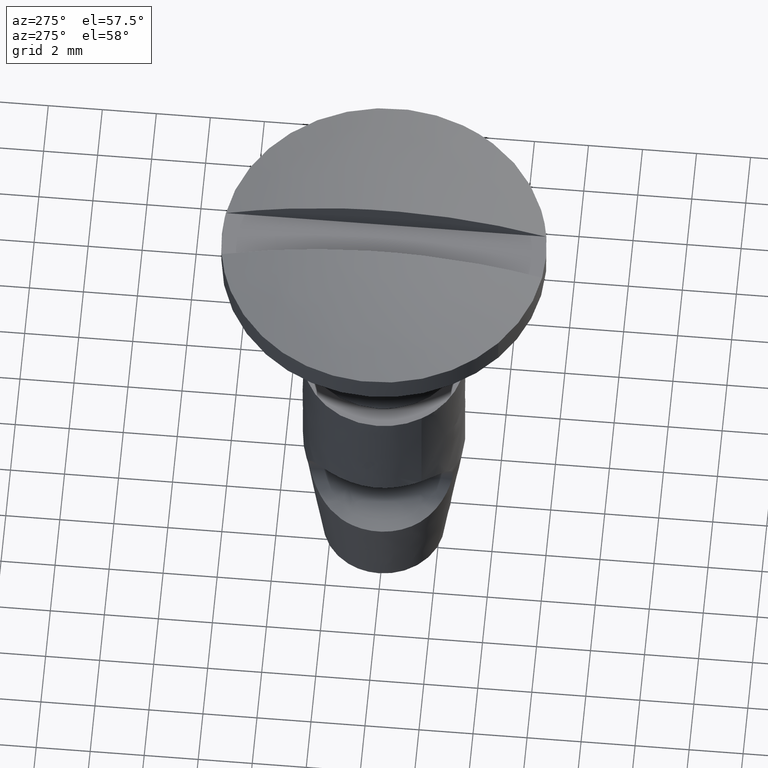
[diagram: clean part render]
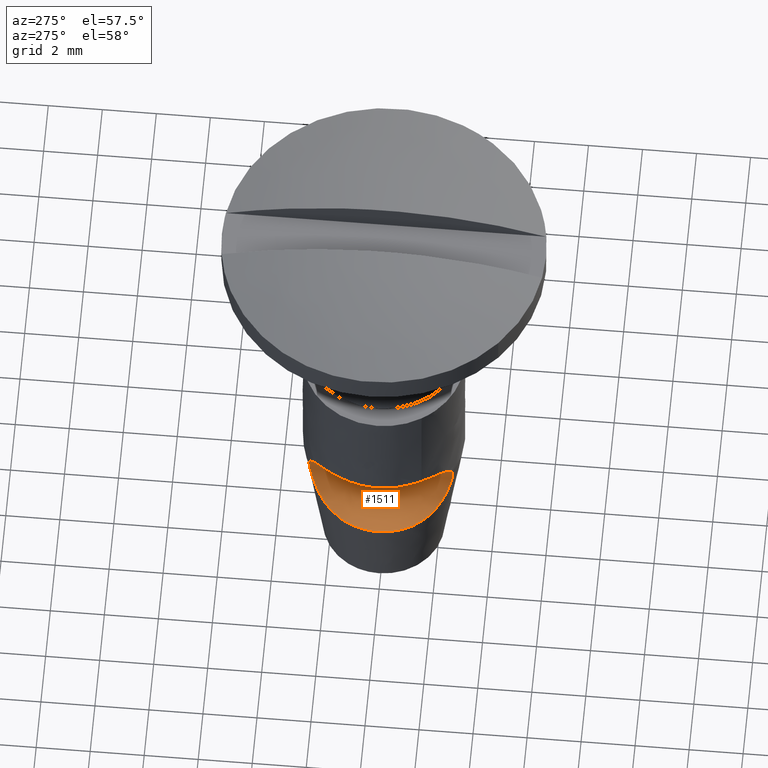
[diagram: same view with one face highlighted and labeled with its STEP entity id]
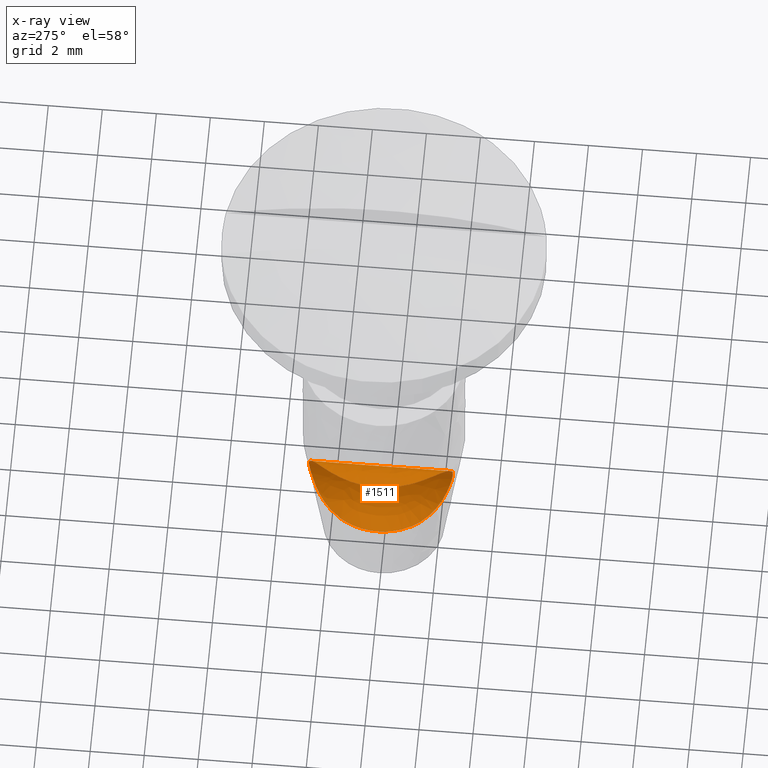
[diagram: x-ray of the same camera — body ghosted, the highlighted face saturated]
A machine part, auxiliary view. The second image highlights one B-rep face of the part: STEP entity #1511.
The next image is the same camera in x-ray: the body ghosted, the highlighted face saturated — about 0% of this face is hidden behind the body in this view.
In plain terms, the highlighted face is a freeform B-spline surface patch.
Its self-contained STEP definition (entity closure, byte-faithful):
#96=CARTESIAN_POINT('',(-2.288268809991713,1.386117586484732,4.684014360866409));
#97=VERTEX_POINT('',#96);
#103=CARTESIAN_POINT('',(-1.355999679755594,2.655354154192300,7.000002687652030));
#104=VERTEX_POINT('',#103);
#105=CARTESIAN_POINT('',(-2.288268809991713,1.386117586484732,4.684014360866409));
#106=CARTESIAN_POINT('',(-2.288162582111236,1.386306695108205,4.684057905011850));
#107=CARTESIAN_POINT('',(-2.288056546705157,1.386495562007664,4.684101987297357));
#108=CARTESIAN_POINT('',(-2.241347530087340,1.469670756053154,4.703525835182372));
#109=CARTESIAN_POINT('',(-2.191445482570844,1.549314597751878,4.726620601317674));
#110=CARTESIAN_POINT('',(-2.086283584067483,1.701979990965732,4.782489065815843));
#111=CARTESIAN_POINT('',(-2.030914049488135,1.775123870140613,4.815323507103828));
#112=CARTESIAN_POINT('',(-1.916691034817464,1.914280233492043,4.893232698784299));
#113=CARTESIAN_POINT('',(-1.859052731717014,1.978848086275691,4.937495946554818));
#114=CARTESIAN_POINT('',(-1.745020129472527,2.098874320203875,5.038116921451184));
#115=CARTESIAN_POINT('',(-1.688616685566162,2.154332627706060,5.094464590212546));
#116=CARTESIAN_POINT('',(-1.606836694163573,2.231342889845454,5.189385794773015));
#117=CARTESIAN_POINT('',(-1.580201746726736,2.255838563356564,5.222611665298042));
#118=CARTESIAN_POINT('',(-1.529168939857675,2.302068479214250,5.291366504927984));
#119=CARTESIAN_POINT('',(-1.504660417150386,2.323907111523188,5.327020780701097));
#120=CARTESIAN_POINT('',(-1.434516799387561,2.385977177249652,5.437822924214965));
#121=CARTESIAN_POINT('',(-1.392248037679149,2.422783482787547,5.516789830392372));
#122=CARTESIAN_POINT('',(-1.337175116653028,2.472305782746600,5.643207289814535));
#123=CARTESIAN_POINT('',(-1.320168938704140,2.487903391565820,5.686845747497460));
#124=CARTESIAN_POINT('',(-1.289831859040811,2.516764937093687,5.775072866681924));
#125=CARTESIAN_POINT('',(-1.276409120988964,2.530108603646936,5.819838703487500));
#126=CARTESIAN_POINT('',(-1.241479467183053,2.567221382925599,5.956028323955152));
#127=CARTESIAN_POINT('',(-1.225276403923654,2.588114869093461,6.049325953218218));
#128=CARTESIAN_POINT('',(-1.212507262931318,2.614277836690888,6.193075976093735));
#129=CARTESIAN_POINT('',(-1.210201729290537,2.622134197769412,6.241764019003539));
#130=CARTESIAN_POINT('',(-1.209654390932351,2.635807863838718,6.338415829364182));
#131=CARTESIAN_POINT('',(-1.211379885108329,2.641673565959556,6.386614850990437));
#132=CARTESIAN_POINT('',(-1.222512454208685,2.656398904126800,6.530832004065113));
#133=CARTESIAN_POINT('',(-1.237829779147558,2.662443873630589,6.626470073987576));
#134=CARTESIAN_POINT('',(-1.273253087378812,2.665044282153285,6.769174094377075));
#135=CARTESIAN_POINT('',(-1.287140121838331,2.664805528553726,6.816505272190883));
#136=CARTESIAN_POINT('',(-1.318678961409638,2.661933116634693,6.909341290802464));
#137=CARTESIAN_POINT('',(-1.336374708690304,2.659305036732062,6.955036435476620));
#138=CARTESIAN_POINT('',(-1.355999679755604,2.655354154192294,7.000002687652027));
#139=B_SPLINE_CURVE_WITH_KNOTS('',3,(#105,#106,#107,#108,#109,#110,#111,#112,#113,#114,#115,#116,#117,#118,#119,#120,#121,#122,#123,#124,#125,#126,#127,#128,#129,#130,#131,#132,#133,#134,#135,#136,#137,#138),.UNSPECIFIED.,.F.,.U.,(4,2,2,2,2,2,2,2,2,2,2,2,2,2,2,2,4),(0.656178886374508,0.656250000000000,0.687500000000000,0.718750000000000,0.750000000000000,0.781250000000000,0.796875000000000,0.812500000000000,0.843750000000001,0.859375000000001,0.875000000000001,0.906250000000001,0.921875000000001,0.937500000000001,0.968750000000001,0.984375000000000,1.0),.UNSPECIFIED.);
#140=EDGE_CURVE('',#97,#104,#139,.T.);
#306=CARTESIAN_POINT('',(-1.355999679755594,-2.655354154192300,7.000002687652030));
#307=VERTEX_POINT('',#306);
#321=CARTESIAN_POINT('',(-1.355999679755604,-2.655354154192295,7.000002687652027));
#322=CARTESIAN_POINT('',(-1.316785352904816,-2.663248749233887,6.910151787786023));
#323=CARTESIAN_POINT('',(-1.285578267299150,-2.665857300413901,6.818199967788275));
#324=CARTESIAN_POINT('',(-1.250353756004730,-2.663407252391283,6.677223749841193));
#325=CARTESIAN_POINT('',(-1.240553763082784,-2.661514537764596,6.629720900553097));
#326=CARTESIAN_POINT('',(-1.224889485491663,-2.655668178650680,6.533678987520131));
#327=CARTESIAN_POINT('',(-1.219014594667741,-2.651684868003517,6.484889521103010));
#328=CARTESIAN_POINT('',(-1.207640949443729,-2.636898099857500,6.339404794045286));
#329=CARTESIAN_POINT('',(-1.208209682085359,-2.623339808588781,6.243319848567039));
#330=CARTESIAN_POINT('',(-1.220649806465317,-2.597472015821560,6.100521513315049));
#331=CARTESIAN_POINT('',(-1.226738210329586,-2.587915110425112,6.053145986717893));
#332=CARTESIAN_POINT('',(-1.242805181045358,-2.566784668322692,5.958866483959518));
#333=CARTESIAN_POINT('',(-1.252775814444623,-2.555236495928067,5.912128756691535));
#334=CARTESIAN_POINT('',(-1.287766570428911,-2.518007051228443,5.775273272182479));
#335=CARTESIAN_POINT('',(-1.317978294285689,-2.489592728843532,5.687648857358541));
#336=CARTESIAN_POINT('',(-1.390832616819125,-2.424032094932622,5.519674198409420));
#337=CARTESIAN_POINT('',(-1.433884028597789,-2.386533333031413,5.438898840591370));
#338=CARTESIAN_POINT('',(-1.527808429329171,-2.303427190819819,5.290379435172278));
#339=CARTESIAN_POINT('',(-1.578903691295265,-2.257615351047627,5.221931190538245));
#340=CARTESIAN_POINT('',(-1.660041537544163,-2.181256376485526,5.127571422973081));
#341=CARTESIAN_POINT('',(-1.687933571907502,-2.154431800697685,5.097412288208283));
#342=CARTESIAN_POINT('',(-1.744492121098341,-2.098430019479563,5.040278012158800));
#343=CARTESIAN_POINT('',(-1.773009013925867,-2.069404451960733,5.013436630674725));
#344=CARTESIAN_POINT('',(-1.858804471253623,-1.979128912775142,4.937681864970591));
#345=CARTESIAN_POINT('',(-1.916321211751513,-1.914680404575895,4.893529229357702));
#346=CARTESIAN_POINT('',(-2.001396026344355,-1.811109964407596,4.835435453291849));
#347=CARTESIAN_POINT('',(-2.029632218071966,-1.775335186554191,4.817384361702245));
#348=CARTESIAN_POINT('',(-2.085083673650622,-1.701882821861706,4.784004065912137));
#349=CARTESIAN_POINT('',(-2.112194288580250,-1.664353095312470,4.768729384579254));
#350=CARTESIAN_POINT('',(-2.191431639550111,-1.549358253721339,4.726616682976731));
#351=CARTESIAN_POINT('',(-2.241460463276748,-1.469490250863035,4.703473587701105));
#352=CARTESIAN_POINT('',(-2.311430019438803,-1.344863844986499,4.674384832568147));
#353=CARTESIAN_POINT('',(-2.333908766089634,-1.302517036049931,4.665630707490730));
#354=CARTESIAN_POINT('',(-2.377037500728630,-1.216201512733256,4.649757800753780));
#355=CARTESIAN_POINT('',(-2.397632652313646,-1.172327368937252,4.642660925513752));
#356=CARTESIAN_POINT('',(-2.494743025934280,-0.951293504366971,4.610974529803083));
#357=CARTESIAN_POINT('',(-2.554632342744304,-0.767498119790231,4.597066248494295));
#358=CARTESIAN_POINT('',(-2.605412680483489,-0.529154266269079,4.586247810343089));
#359=CARTESIAN_POINT('',(-2.614365062634275,-0.480965654776700,4.584434172034693));
#360=CARTESIAN_POINT('',(-2.629629046951967,-0.384745069310251,4.581430362017480));
#361=CARTESIAN_POINT('',(-2.635969421776119,-0.336600089126556,4.580233879088555));
#362=CARTESIAN_POINT('',(-2.651162974404412,-0.192063022540981,4.577418341674207));
#363=CARTESIAN_POINT('',(-2.661230807543153,0.000924785799617,4.575690640037053));
#364=CARTESIAN_POINT('',(-2.651014839443568,0.194450647933645,4.577443906040331));
#365=CARTESIAN_POINT('',(-2.635579011483458,0.339802344687373,4.580307213127941));
#366=CARTESIAN_POINT('',(-2.629110700827858,0.388413825354996,4.581529741833246));
#367=CARTESIAN_POINT('',(-2.613711416958329,0.484652977333354,4.584565637040544));
#368=CARTESIAN_POINT('',(-2.604777834832049,0.532370473483567,4.586379381875055));
#369=CARTESIAN_POINT('',(-2.554107956063378,0.768976518700897,4.597193252894869));
#370=CARTESIAN_POINT('',(-2.494472275497607,0.951984811414740,4.611053410072686));
#371=CARTESIAN_POINT('',(-2.378158889139941,1.216614217917490,4.649019808039801));
#372=CARTESIAN_POINT('',(-2.334751494434530,1.303302626210486,4.664694822132782));
#373=CARTESIAN_POINT('',(-2.288268809991713,1.386117586484732,4.684014360866409));
#374=B_SPLINE_CURVE_WITH_KNOTS('',3,(#321,#322,#323,#324,#325,#326,#327,#328,#329,#330,#331,#332,#333,#334,#335,#336,#337,#338,#339,#340,#341,#342,#343,#344,#345,#346,#347,#348,#349,#350,#351,#352,#353,#354,#355,#356,#357,#358,#359,#360,#361,#362,#363,#364,#365,#366,#367,#368,#369,#370,#371,#372,#373),.UNSPECIFIED.,.F.,.U.,(4,2,2,2,2,2,2,2,2,2,2,2,2,2,2,2,2,2,2,2,2,1,2,2,2,2,4),(0.0,0.031250000000000,0.046875000000000,0.062500000000001,0.093750000000001,0.109375000000001,0.125000000000001,0.156250000000001,0.187500000000000,0.218750000000000,0.234375000000000,0.250000000000000,0.281250000000000,0.296875000000000,0.312500000000000,0.343750000000000,0.359375000000000,0.375000000000000,0.437500000000000,0.453125000000000,0.468750000000000,0.500000000000000,0.531250000000000,0.546875000000000,0.562500000000000,0.625000000000000,0.656178886374507),.UNSPECIFIED.);
#375=EDGE_CURVE('',#307,#97,#374,.T.);
#532=CARTESIAN_POINT('',(-2.490070795529496,-1.611897240274488,7.985745524091885));
#533=VERTEX_POINT('',#532);
#534=CARTESIAN_POINT('',(-1.355999679755594,2.655354154192300,7.000002687652030));
#535=CARTESIAN_POINT('',(-1.415840297745408,2.623891887409042,7.137113959760749));
#536=CARTESIAN_POINT('',(-1.490625974092713,2.582137899638477,7.261077035330447));
#537=CARTESIAN_POINT('',(-1.598804943895828,2.512896864434411,7.400529519363830));
#538=CARTESIAN_POINT('',(-1.621273788341492,2.498120374271505,7.427736013725656));
#539=CARTESIAN_POINT('',(-1.667141182806920,2.467001395094001,7.480035213166909));
#540=CARTESIAN_POINT('',(-1.690487523495165,2.450697798679263,7.505084196253932));
#541=CARTESIAN_POINT('',(-1.761545581830783,2.399475746435444,7.577103905210413));
#542=CARTESIAN_POINT('',(-1.810273373998687,2.362248808329327,7.620953078611795));
#543=CARTESIAN_POINT('',(-1.884608281452538,2.301417807507321,7.681036069336152));
#544=CARTESIAN_POINT('',(-1.909594706453238,2.280308316729284,7.700113625293287));
#545=CARTESIAN_POINT('',(-1.959859091091539,2.236354010620933,7.736446085396318));
#546=CARTESIAN_POINT('',(-1.985191774814799,2.213453455412637,7.753731046165894));
#547=CARTESIAN_POINT('',(-2.060479247240814,2.142964236727140,7.802368137051236));
#548=CARTESIAN_POINT('',(-2.110005148501291,2.093353759803752,7.830735636154114));
#549=CARTESIAN_POINT('',(-2.206996173937077,1.988879425271146,7.880698677061195));
#550=CARTESIAN_POINT('',(-2.254463409653967,1.934015553340080,7.902290196604271));
#551=CARTESIAN_POINT('',(-2.323633957660254,1.847734637466603,7.930423637981635));
#552=CARTESIAN_POINT('',(-2.346350951177863,1.818304140669277,7.939086772485259));
#553=CARTESIAN_POINT('',(-2.390567878800631,1.758758671703604,7.954964850516161));
#554=CARTESIAN_POINT('',(-2.412132459103778,1.728565180171085,7.962206981180334));
#555=CARTESIAN_POINT('',(-2.517193229836129,1.575534055892890,7.995368434066888));
#556=CARTESIAN_POINT('',(-2.592421516920629,1.446537436838974,8.012282476092429));
#557=CARTESIAN_POINT('',(-2.691057987461949,1.243559823874154,8.029547021151823));
#558=CARTESIAN_POINT('',(-2.721656048939377,1.174078166861957,8.033933070617337));
#559=CARTESIAN_POINT('',(-2.777441370586251,1.033062217625307,8.040687416424678));
#560=CARTESIAN_POINT('',(-2.802538039793816,0.961818468718811,8.043053087761576));
#561=CARTESIAN_POINT('',(-2.869590016263599,0.745938719088636,8.048241470076732));
#562=CARTESIAN_POINT('',(-2.903352295741225,0.599167134730503,8.049231411483003));
#563=CARTESIAN_POINT('',(-2.937368137794914,0.374727906399709,8.049889784557987));
#564=CARTESIAN_POINT('',(-2.945926815674030,0.298956563333421,8.049951341144995));
#565=CARTESIAN_POINT('',(-2.957196923061860,0.148132871139035,8.050004955650810));
#566=CARTESIAN_POINT('',(-2.959957070864828,0.072879265094861,8.049997925836992));
#567=CARTESIAN_POINT('',(-2.959790646132702,-0.152416794938085,8.049997782057814));
#568=CARTESIAN_POINT('',(-2.948464069323711,-0.301997186288070,8.050106911213369));
#569=CARTESIAN_POINT('',(-2.914492051417223,-0.525432145792038,8.049444935516089));
#570=CARTESIAN_POINT('',(-2.900295923871550,-0.599882840254655,8.049065456048929));
#571=CARTESIAN_POINT('',(-2.866171823257040,-0.747912139718666,8.047568919987912));
#572=CARTESIAN_POINT('',(-2.846413920494922,-0.820797764292776,8.046457675611011));
#573=CARTESIAN_POINT('',(-2.779310902074470,-1.036122980269977,8.041232398319808));
#574=CARTESIAN_POINT('',(-2.724170766778447,-1.175250533573849,8.035314940497104));
#575=CARTESIAN_POINT('',(-2.626182868061790,-1.377154402537154,8.018202530052154));
#576=CARTESIAN_POINT('',(-2.590964971258357,-1.443319536493312,8.011106206222211));
#577=CARTESIAN_POINT('',(-2.532863256870586,-1.543215466402396,7.997221919919761));
#578=CARTESIAN_POINT('',(-2.511777216936157,-1.577823427975118,7.991795060279327));
#579=CARTESIAN_POINT('',(-2.490070795529496,-1.611897240274488,7.985745524091885));
#580=B_SPLINE_CURVE_WITH_KNOTS('',3,(#534,#535,#536,#537,#538,#539,#540,#541,#542,#543,#544,#545,#546,#547,#548,#549,#550,#551,#552,#553,#554,#555,#556,#557,#558,#559,#560,#561,#562,#563,#564,#565,#566,#567,#568,#569,#570,#571,#572,#573,#574,#575,#576,#577,#578,#579),.UNSPECIFIED.,.F.,.U.,(4,2,2,2,2,2,2,2,2,2,2,2,2,2,2,2,2,2,2,2,2,2,4),(0.0,0.062499999999998,0.078124999999998,0.093749999999998,0.124999999999998,0.140624999999998,0.156249999999998,0.187499999999998,0.218749999999998,0.234374999999998,0.249999999999998,0.312499999999998,0.343749999999998,0.374999999999998,0.437499999999998,0.468749999999998,0.499999999999998,0.562499999999998,0.593749999999998,0.624999999999998,0.687499999999998,0.718749999999998,0.735537932687883),.UNSPECIFIED.);
#581=EDGE_CURVE('',#104,#533,#580,.T.);
#621=CARTESIAN_POINT('',(-2.490070795529496,-1.611897240274488,7.985745524091885));
#622=CARTESIAN_POINT('',(-2.471371589879328,-1.641250297689568,7.980534181014142));
#623=CARTESIAN_POINT('',(-2.452211994885147,-1.670206959317097,7.974860745651576));
#624=CARTESIAN_POINT('',(-2.348348053220212,-1.821408018895397,7.942046337108722));
#625=CARTESIAN_POINT('',(-2.256607853066650,-1.935363493594797,7.906190836284114));
#626=CARTESIAN_POINT('',(-2.110613616525253,-2.092741272855896,7.831077219077868));
#627=CARTESIAN_POINT('',(-2.060348526775664,-2.143086176940654,7.802277595823036));
#628=CARTESIAN_POINT('',(-1.960383156226368,-2.236686726990403,7.737705814627326));
#629=CARTESIAN_POINT('',(-1.910399047278273,-2.280275947934215,7.701815028682393));
#630=CARTESIAN_POINT('',(-1.811400428555783,-2.361365953631257,7.621925709496213));
#631=CARTESIAN_POINT('',(-1.762291066488275,-2.398932964226397,7.577839286375040));
#632=CARTESIAN_POINT('',(-1.666520727694371,-2.467982330041863,7.480809793977452));
#633=CARTESIAN_POINT('',(-1.620887630670567,-2.498745743948338,7.428915247276017));
#634=CARTESIAN_POINT('',(-1.534929450467104,-2.553799283716591,7.318265186110152));
#635=CARTESIAN_POINT('',(-1.494600030259165,-2.578089179289768,7.259512727527675));
#636=CARTESIAN_POINT('',(-1.420157572071164,-2.620972021809444,7.134843194923541));
#637=CARTESIAN_POINT('',(-1.385949933290765,-2.639607399368466,7.068626636454519));
#638=CARTESIAN_POINT('',(-1.355999679755594,-2.655354154192300,7.000002687652030));
#639=B_SPLINE_CURVE_WITH_KNOTS('',3,(#621,#622,#623,#624,#625,#626,#627,#628,#629,#630,#631,#632,#633,#634,#635,#636,#637,#638),.UNSPECIFIED.,.F.,.U.,(4,2,2,2,2,2,2,2,4),(0.735537932687883,0.749999999999999,0.812499999999999,0.843749999999999,0.874999999999999,0.906249999999999,0.937500000000000,0.968750000000000,1.0),.UNSPECIFIED.);
#640=EDGE_CURVE('',#533,#307,#639,.T.);
#1487=CARTESIAN_POINT('',(-3.023363363312922,2.789558305593717,8.048848878982218));
#1488=CARTESIAN_POINT('',(-3.023363363312922,-2.792865093577996,8.048848878982218));
#1489=CARTESIAN_POINT('',(-1.349204773011762,2.789558305593717,8.109601832617393));
#1490=CARTESIAN_POINT('',(-1.349204773011762,-2.792865093577996,8.109601832617393));
#1491=CARTESIAN_POINT('',(-1.215483870665343,2.789558305593717,6.439686676949231));
#1492=CARTESIAN_POINT('',(-1.215483870665343,-2.792865093577996,6.439686676949231));
#1493=CARTESIAN_POINT('',(-1.081762968318925,2.789558305593717,4.769771521281069));
#1494=CARTESIAN_POINT('',(-1.081762968318925,-2.792865093577996,4.769771521281069));
#1495=CARTESIAN_POINT('',(-2.744255910943503,2.789558305593717,4.563337215561223));
#1496=CARTESIAN_POINT('',(-2.744255910943503,-2.792865093577996,4.563337215561223));
#1504=(BOUNDED_SURFACE()B_SPLINE_SURFACE(1,2,((#1487,#1489,#1491,#1493,#1495),(#1488,#1490,#1492,#1494,#1496)),.UNSPECIFIED.,.F.,.F.,.U.)B_SPLINE_SURFACE_WITH_KNOTS((2,2),(3,2,3),(0.0,5.582423399171713),(0.0,2.810434668342154,5.620869336684307),.UNSPECIFIED.)GEOMETRIC_REPRESENTATION_ITEM()RATIONAL_B_SPLINE_SURFACE(((1.0,0.722363962059756,1.0,0.722363962059756,1.0),(1.0,0.722363962059756,1.0,0.722363962059756,1.0)))REPRESENTATION_ITEM('')SURFACE());
#1505=ORIENTED_EDGE('',*,*,#140,.F.);
#1506=ORIENTED_EDGE('',*,*,#375,.F.);
#1507=ORIENTED_EDGE('',*,*,#640,.F.);
#1508=ORIENTED_EDGE('',*,*,#581,.F.);
#1509=EDGE_LOOP('',(#1505,#1506,#1507,#1508));
#1510=FACE_OUTER_BOUND('',#1509,.T.);
#1511=ADVANCED_FACE('',(#1510),#1504,.F.);